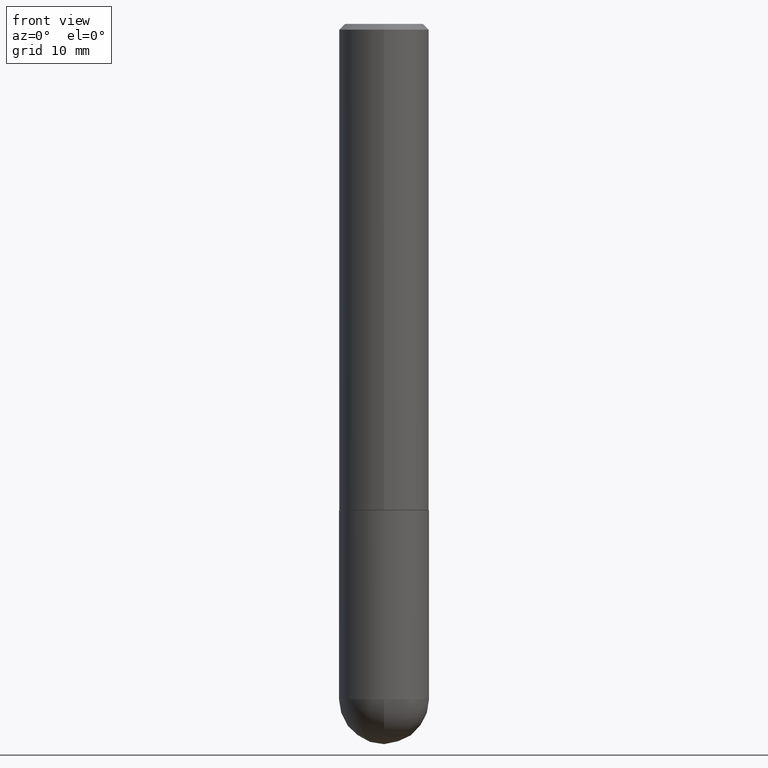
[diagram: clean part render]
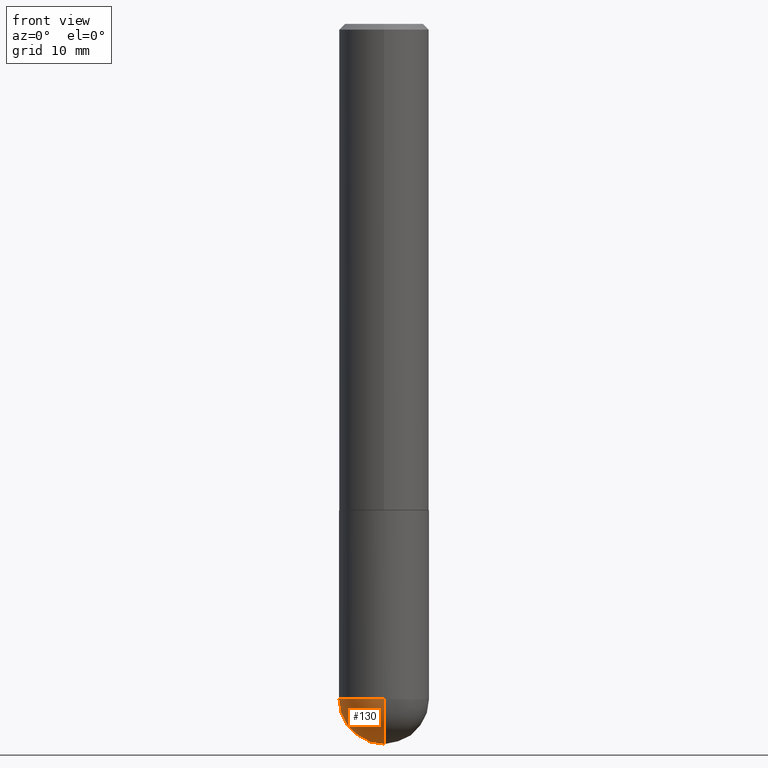
[diagram: same view with one face highlighted and labeled with its STEP entity id]
A machine part, front view. The second image highlights one B-rep face of the part: STEP entity #130.
In plain terms, the highlighted spherical surface has radius 3.9688 mm.
Its self-contained STEP definition (entity closure, byte-faithful):
#5 = CIRCLE ( 'NONE', #246, 0.1562500000000000000 ) ;
#10 = VERTEX_POINT ( 'NONE', #278 ) ;
#24 = AXIS2_PLACEMENT_3D ( 'NONE', #365, #150, #215 ) ;
#31 = VERTEX_POINT ( 'NONE', #355 ) ;
#46 = DIRECTION ( 'NONE',  ( -7.105427357601000281E-15, -1.000000000000000000, 0.000000000000000000 ) ) ;
#49 = EDGE_CURVE ( 'NONE', #183, #31, #5, .T. ) ;
#62 = CARTESIAN_POINT ( 'NONE',  ( 5.400447736582527652E-29, -8.657341756053672891E-15, -2.343750000000000000 ) ) ;
#64 = FACE_OUTER_BOUND ( 'NONE', #406, .T. ) ;
#72 = CIRCLE ( 'NONE', #24, 0.1562500000000000000 ) ;
#75 = CARTESIAN_POINT ( 'NONE',  ( 1.091087918388535577E-15, 0.1562499999999916733, -2.343750000000000444 ) ) ;
#105 = DIRECTION ( 'NONE',  ( 1.000000000000000000, -6.982962677686265922E-15, 4.883557194083112340E-29 ) ) ;
#115 = VERTEX_POINT ( 'NONE', #354 ) ;
#129 = DIRECTION ( 'NONE',  ( -2.445468806185136597E-29, 3.491481338843145583E-15, 1.000000000000000000 ) ) ;
#130 = ADVANCED_FACE ( 'NONE', ( #64 ), #192, .T. ) ;
#150 = DIRECTION ( 'NONE',  ( -2.445468806185136597E-29, 3.491481338843145583E-15, 1.000000000000000000 ) ) ;
#164 = ORIENTED_EDGE ( 'NONE', *, *, #197, .F. ) ;
#166 = CIRCLE ( 'NONE', #374, 0.1562500000000002498 ) ;
#183 = VERTEX_POINT ( 'NONE', #75 ) ;
#186 = AXIS2_PLACEMENT_3D ( 'NONE', #337, #105, #330 ) ;
#192 = SPHERICAL_SURFACE ( 'NONE', #326, 0.1562500000000002498 ) ;
#197 = EDGE_CURVE ( 'NONE', #31, #10, #72, .T. ) ;
#200 = CARTESIAN_POINT ( 'NONE',  ( 5.400447736582527652E-29, -8.657341756053672891E-15, -2.343750000000000000 ) ) ;
#201 = DIRECTION ( 'NONE',  ( 1.000000000000000000, -6.982962677686262766E-15, 0.000000000000000000 ) ) ;
#207 = CIRCLE ( 'NONE', #186, 0.1562500000000002498 ) ;
#213 = ORIENTED_EDGE ( 'NONE', *, *, #49, .F. ) ;
#215 = DIRECTION ( 'NONE',  ( 1.000000000000000000, -6.982962677686262766E-15, 0.000000000000000000 ) ) ;
#235 = DIRECTION ( 'NONE',  ( -1.000000000000000000, 6.982962677686265922E-15, -4.883557194083112340E-29 ) ) ;
#246 = AXIS2_PLACEMENT_3D ( 'NONE', #323, #129, #201 ) ;
#267 = EDGE_CURVE ( 'NONE', #115, #10, #166, .T. ) ;
#275 = EDGE_CURVE ( 'NONE', #115, #183, #207, .T. ) ;
#278 = CARTESIAN_POINT ( 'NONE',  ( -1.110223024625101517E-15, -0.1562500000000085487, -2.343749999999999556 ) ) ;
#282 = ORIENTED_EDGE ( 'NONE', *, *, #267, .T. ) ;
#323 = CARTESIAN_POINT ( 'NONE',  ( 5.731567514496413899E-29, -8.183159387913622595E-15, -2.343750000000000000 ) ) ;
#324 = DIRECTION ( 'NONE',  ( 6.982962677686265922E-15, 1.000000000000000000, -3.496765431890251398E-15 ) ) ;
#326 = AXIS2_PLACEMENT_3D ( 'NONE', #200, #235, #324 ) ;
#330 = DIRECTION ( 'NONE',  ( 6.982962677686265922E-15, 1.000000000000000000, 0.000000000000000000 ) ) ;
#337 = CARTESIAN_POINT ( 'NONE',  ( 5.400447736582527652E-29, -8.657341756053672891E-15, -2.343750000000000000 ) ) ;
#354 = CARTESIAN_POINT ( 'NONE',  ( 5.789233224183170584E-29, -9.193318162129576161E-15, -2.500000000000000000 ) ) ;
#355 = CARTESIAN_POINT ( 'NONE',  ( -0.1562500000000000000, -5.928166919315270321E-15, -2.343750000000000000 ) ) ;
#357 = DIRECTION ( 'NONE',  ( -1.000000000000000000, 7.105427357601001070E-15, -4.926315508542082329E-29 ) ) ;
#365 = CARTESIAN_POINT ( 'NONE',  ( 5.731567514496413899E-29, -8.183159387913622595E-15, -2.343750000000000000 ) ) ;
#374 = AXIS2_PLACEMENT_3D ( 'NONE', #62, #357, #46 ) ;
#382 = ORIENTED_EDGE ( 'NONE', *, *, #275, .F. ) ;
#406 = EDGE_LOOP ( 'NONE', ( #382, #282, #164, #213 ) ) ;